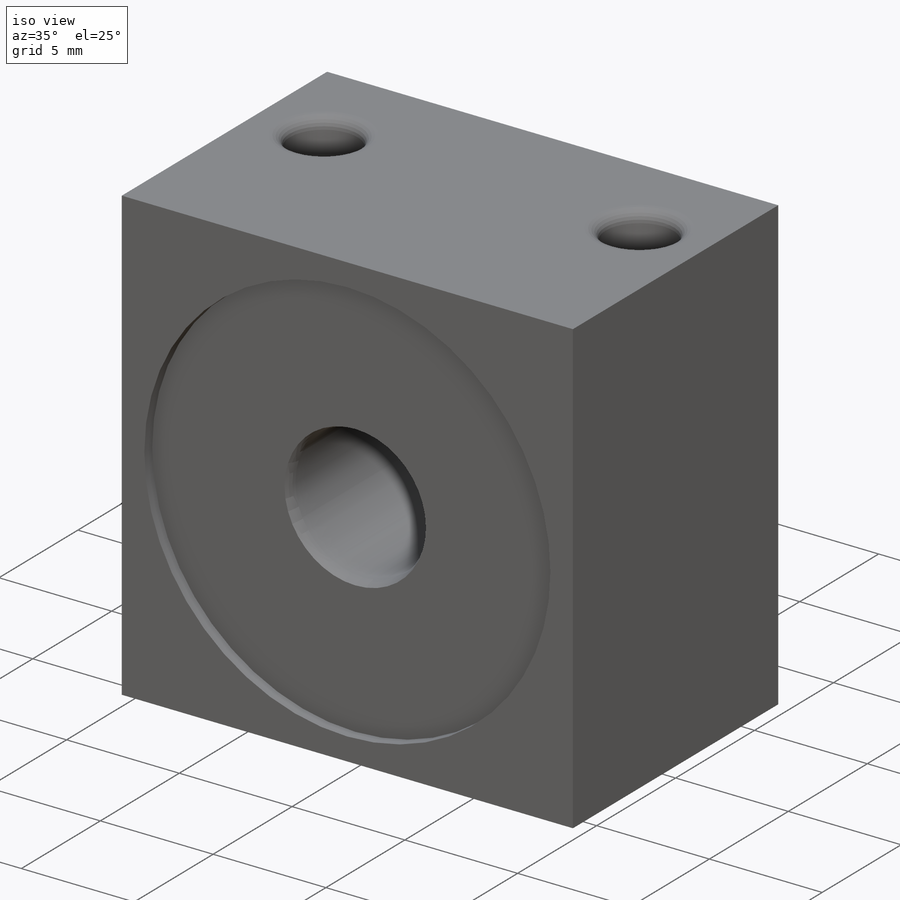
[diagram: iso view]
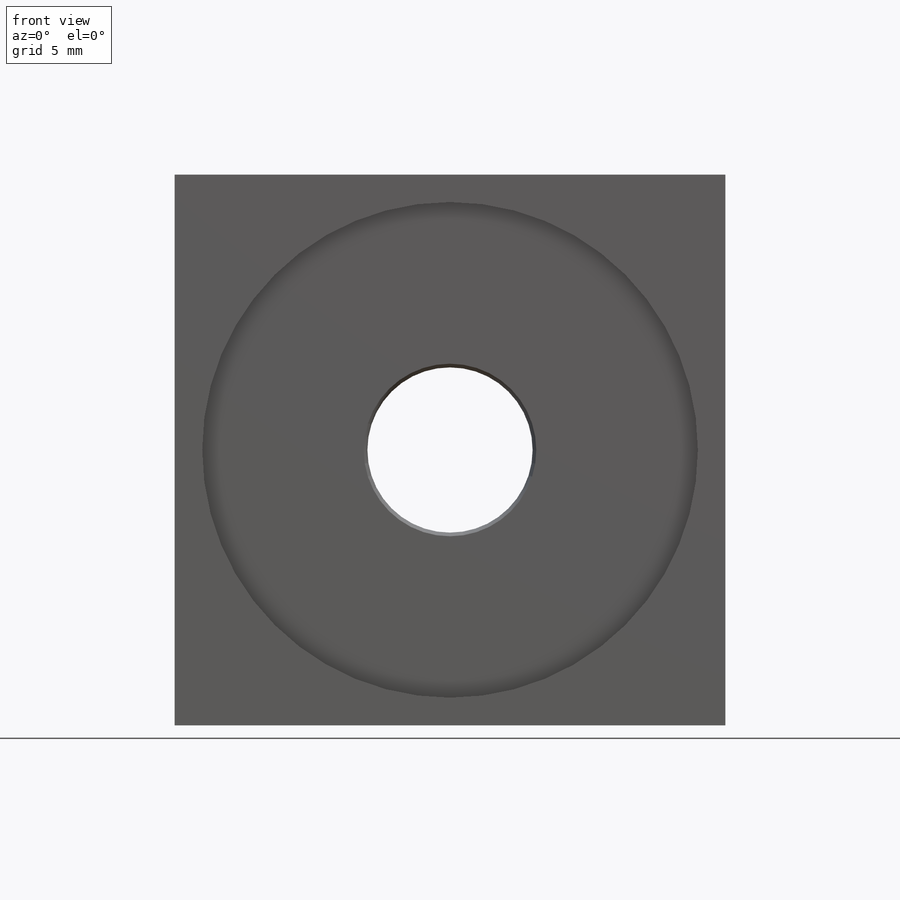
[diagram: front view]
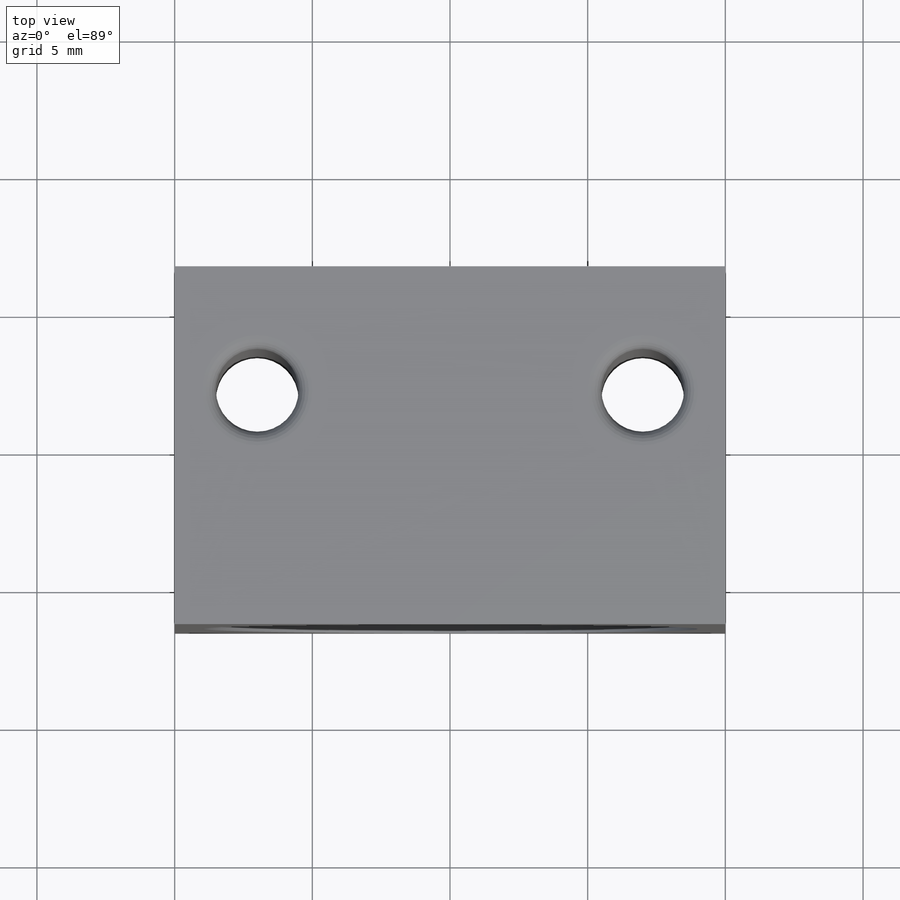
[diagram: top view]
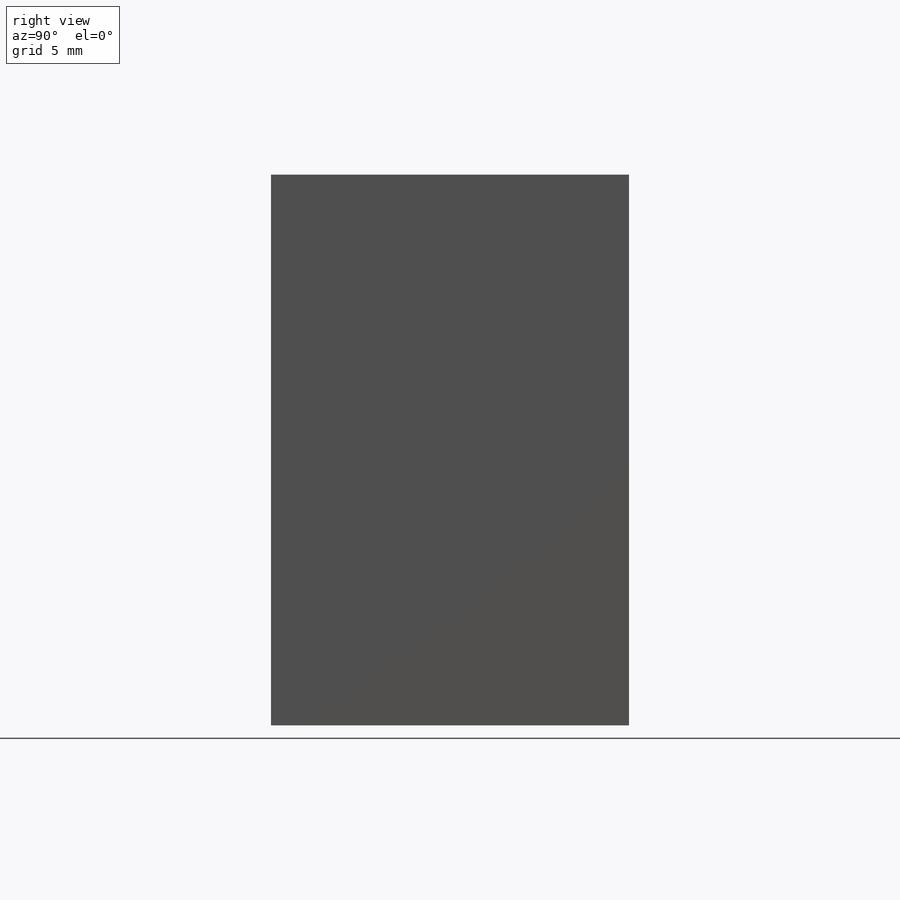
[diagram: right view]
SOLIDWORKS PART (.sldprt)
format: sldprt  version: not decoded by parser v0  size: 243,712 bytes
history: native  units: mm
features: fillet x6, sketch x4, plane x3, cut_extrude x3, material x1, extrude x1, mirror x1 (+9 scaffold rows collapsed)
feature tree (28):
  scaffold x9  (default folders/planes/origin — collapsed)
  material  "Matériau <non spécifié>"
  plane  "Plan de face"
  plane  "Plan de dessus"
  plane  "Plan de droite"
  sketch  "Esquisse1"  dims[c1.D1=~41.200531mm c1.D2=~56.161617mm c2.D1=~10.127505mm c2.D2=~1.611194mm c3.D1=~10.127505mm c3.D2=~1.611194mm c4.D1=20.0mm c4.D2=10.0mm c4.D3=13.0mm c4.D4=6.5mm]
  extrude  "Boss.-Extru.1"  Depth=20mm
  sketch  "Esquisse2"  dims[c1.D1=~10.111768mm c1.D3=6.0mm c2.D1=10.0mm c2.D2=10.0mm]
  cut_extrude  "Enlèv. mat.-Extru.1"  Depth=20mm
  sketch  "Esquisse3"  dims[D1=3.0mm D2=8.5mm D3=3.0mm D4=~13.910542mm]
  cut_extrude  "Enlèv. mat.-Extru.2"  Depth=20mm
  fillet  "Congé1"  Radius=1mm
  fillet  "Congé2"  Radius=0.5mm
  fillet  "Congé3"  Radius=0.5mm
  fillet  "Congé4"  Radius=0.5mm
  fillet  "Congé5"  Radius=0.5mm
  fillet  "Congé6"  Radius=1mm
  sketch  "Esquisse4"  dims[D1=18.0mm D2=6.0mm]
  cut_extrude  "Enlèv. mat.-Extru.3"  Depth=0.5mm
  mirror  "Symétrie1"
decode coverage: 14 of 15 modeling features carry decoded parameters
note: ~ marks probable driven/reference dimensions
note: suppression state not decoded; provenance and decode notes live in map.json
